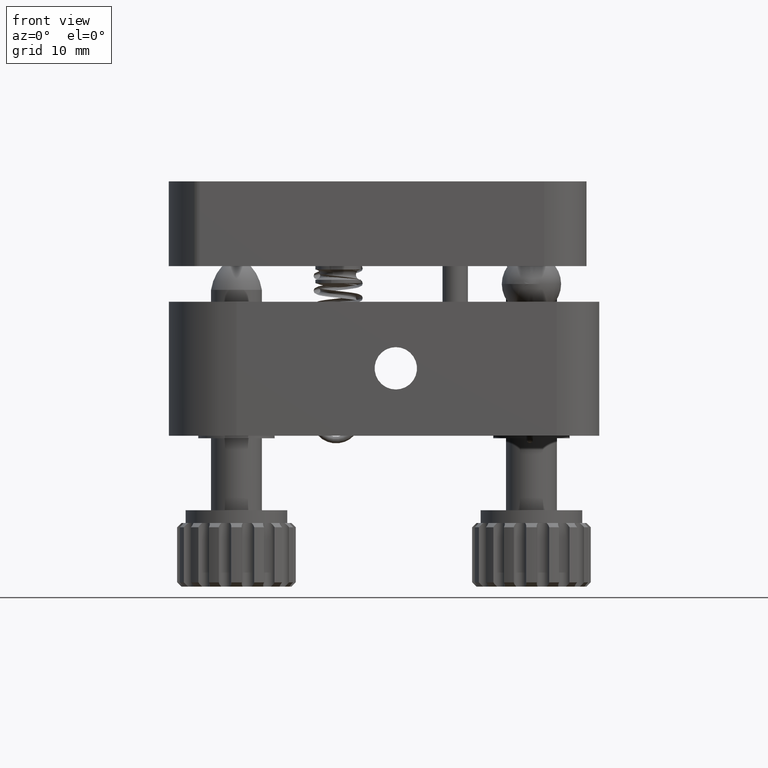
[diagram: clean part render]
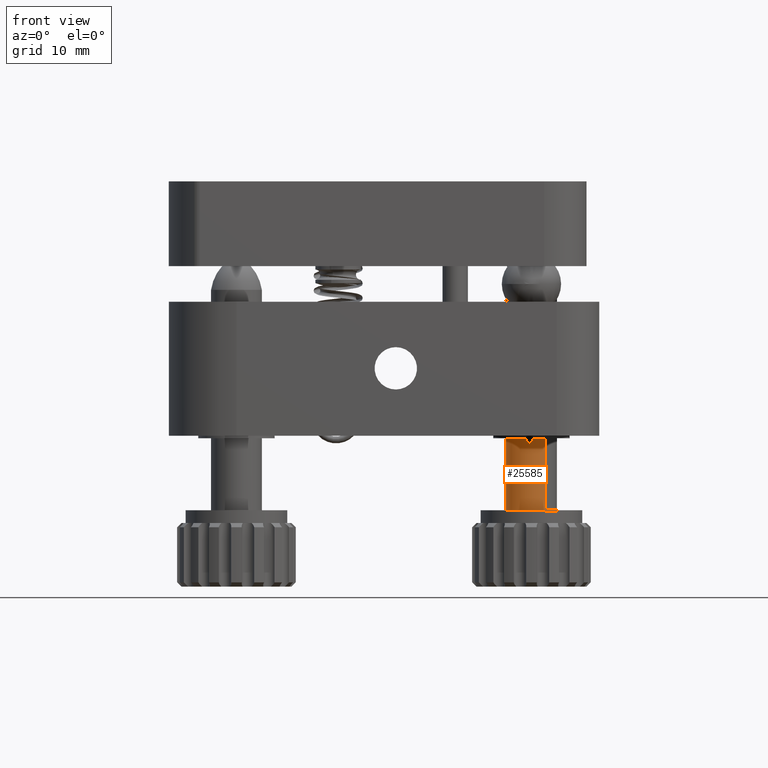
[diagram: same view with one face highlighted and labeled with its STEP entity id]
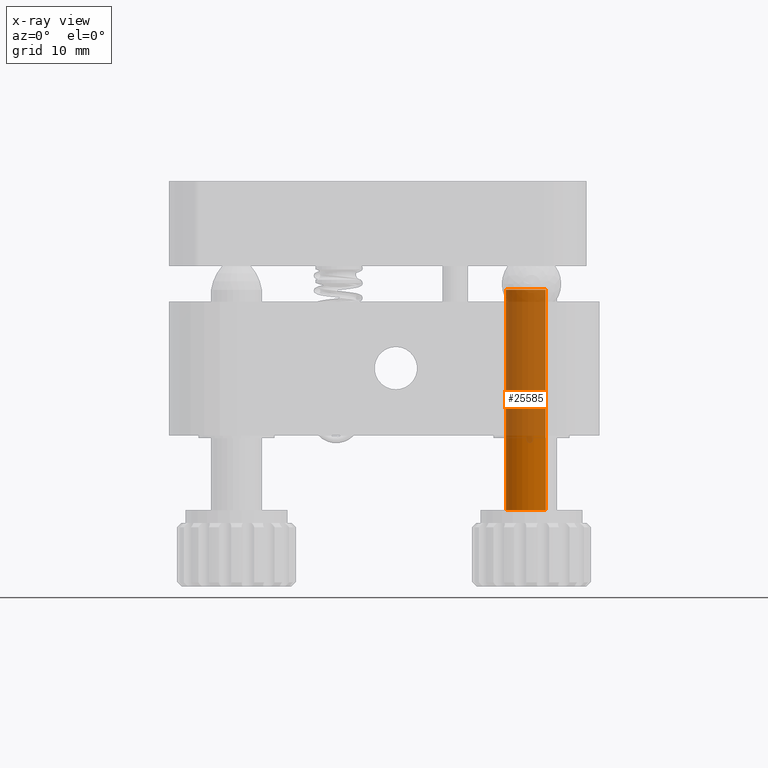
[diagram: x-ray of the same camera — body ghosted, the highlighted face saturated]
A machine part, front view. The second image highlights one B-rep face of the part: STEP entity #25585.
The next image is the same camera in x-ray: the body ghosted, the highlighted face saturated — about 67% of this face is hidden behind the body in this view.
In plain terms, the highlighted cylindrical surface (edge-blend (fillet) strip) has radius 3 mm, axis along (-0, 0, -1).
Its self-contained STEP definition (entity closure, byte-faithful):
#414 = CARTESIAN_POINT ( 'NONE',  ( 15.48132716037413400, 14.91308501973682300, 8.599999999999996100 ) ) ;
#651 = CYLINDRICAL_SURFACE ( 'NONE', #32172, 2.999999999999995100 ) ;
#1329 = DIRECTION ( 'NONE',  ( -5.078075566723327900E-027, 2.775557561690775600E-017, -1.000000000000000000 ) ) ;
#1617 = CARTESIAN_POINT ( 'NONE',  ( 15.48132716037413400, 14.91308501973682300, 17.59999999999999800 ) ) ;
#3253 = DIRECTION ( 'NONE',  ( -5.078075566723327900E-027, 2.775557561690775600E-017, -1.000000000000000000 ) ) ;
#3730 = DIRECTION ( 'NONE',  ( 0.5563949760510557000, -0.8309179445800560800, 0.0000000000000000000 ) ) ;
#3779 = AXIS2_PLACEMENT_3D ( 'NONE', #23106, #6352, #25909 ) ;
#6352 = DIRECTION ( 'NONE',  ( -5.078075566723327900E-027, 2.775557561690775600E-017, -1.000000000000000000 ) ) ;
#9112 = DIRECTION ( 'NONE',  ( -5.078075566723327900E-027, 2.775557561690775600E-017, -1.000000000000000000 ) ) ;
#9230 = CARTESIAN_POINT ( 'NONE',  ( 13.81214223222096900, 17.40583885347698600, 8.599999999999996100 ) ) ;
#9541 = CARTESIAN_POINT ( 'NONE',  ( 15.48132716037413400, 14.91308501973682400, 43.60000000000000100 ) ) ;
#10258 = ORIENTED_EDGE ( 'NONE', *, *, #16032, .T. ) ;
#11182 = EDGE_LOOP ( 'NONE', ( #10258, #19138, #27711, #29088 ) ) ;
#14826 = VECTOR ( 'NONE', #20294, 1000.000000000000000 ) ;
#15855 = VERTEX_POINT ( 'NONE', #34997 ) ;
#16032 = EDGE_CURVE ( 'NONE', #30677, #28027, #32829, .T. ) ;
#16440 = VERTEX_POINT ( 'NONE', #1617 ) ;
#18110 = CARTESIAN_POINT ( 'NONE',  ( 13.81214223222096900, 17.40583885347698600, 17.59999999999999800 ) ) ;
#18193 = FACE_OUTER_BOUND ( 'NONE', #11182, .T. ) ;
#19138 = ORIENTED_EDGE ( 'NONE', *, *, #30086, .T. ) ;
#19313 = CIRCLE ( 'NONE', #22307, 2.999999999999995100 ) ;
#20294 = DIRECTION ( 'NONE',  ( -5.078075566723327900E-027, 2.775557561690775600E-017, -1.000000000000000000 ) ) ;
#20897 = VECTOR ( 'NONE', #3253, 1000.000000000000000 ) ;
#20949 = DIRECTION ( 'NONE',  ( 0.5563949760510557000, -0.8309179445800560800, 0.0000000000000000000 ) ) ;
#22005 = EDGE_CURVE ( 'NONE', #30677, #16440, #34828, .T. ) ;
#22282 = LINE ( 'NONE', #25918, #14826 ) ;
#22307 = AXIS2_PLACEMENT_3D ( 'NONE', #18110, #1329, #20949 ) ;
#23106 = CARTESIAN_POINT ( 'NONE',  ( 13.81214223222096900, 17.40583885347698600, 43.60000000000000100 ) ) ;
#25585 = ADVANCED_FACE ( 'NONE', ( #18193 ), #651, .T. ) ;
#25909 = DIRECTION ( 'NONE',  ( 0.5563949760510557000, -0.8309179445800560800, 0.0000000000000000000 ) ) ;
#25918 = CARTESIAN_POINT ( 'NONE',  ( 12.14295730406780500, 19.89859268721715000, 8.599999999999996100 ) ) ;
#27711 = ORIENTED_EDGE ( 'NONE', *, *, #32904, .F. ) ;
#28027 = VERTEX_POINT ( 'NONE', #29704 ) ;
#29088 = ORIENTED_EDGE ( 'NONE', *, *, #22005, .F. ) ;
#29704 = CARTESIAN_POINT ( 'NONE',  ( 12.14295730406780500, 19.89859268721715000, 43.60000000000000100 ) ) ;
#30086 = EDGE_CURVE ( 'NONE', #28027, #15855, #22282, .T. ) ;
#30677 = VERTEX_POINT ( 'NONE', #9541 ) ;
#32172 = AXIS2_PLACEMENT_3D ( 'NONE', #9230, #9112, #3730 ) ;
#32829 = CIRCLE ( 'NONE', #3779, 2.999999999999995100 ) ;
#32904 = EDGE_CURVE ( 'NONE', #16440, #15855, #19313, .T. ) ;
#34828 = LINE ( 'NONE', #414, #20897 ) ;
#34997 = CARTESIAN_POINT ( 'NONE',  ( 12.14295730406780500, 19.89859268721715000, 17.59999999999999800 ) ) ;